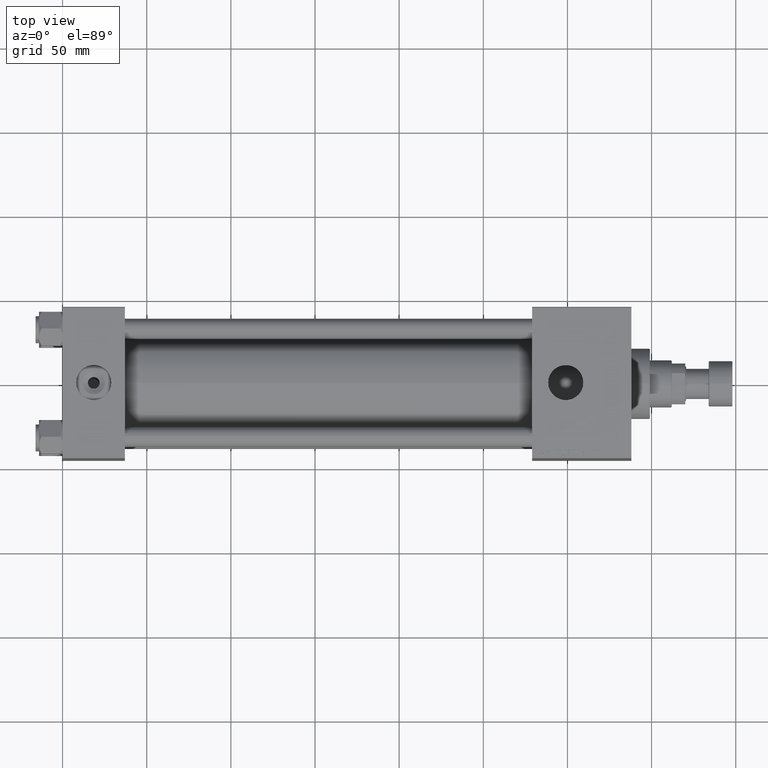
[diagram: clean part render]
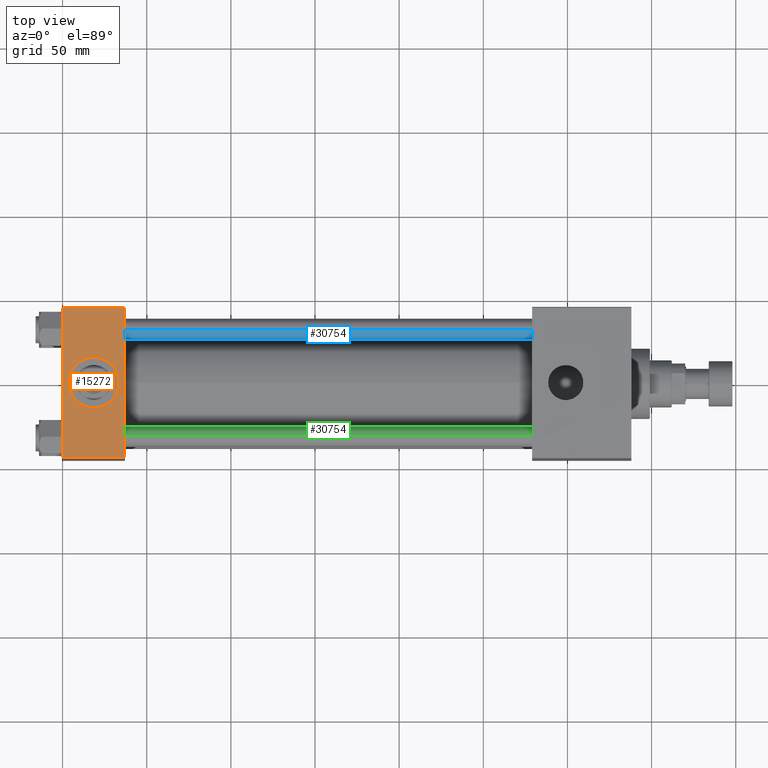
[diagram: same view with three faces highlighted in distinct colors, each labeled with its STEP entity id]
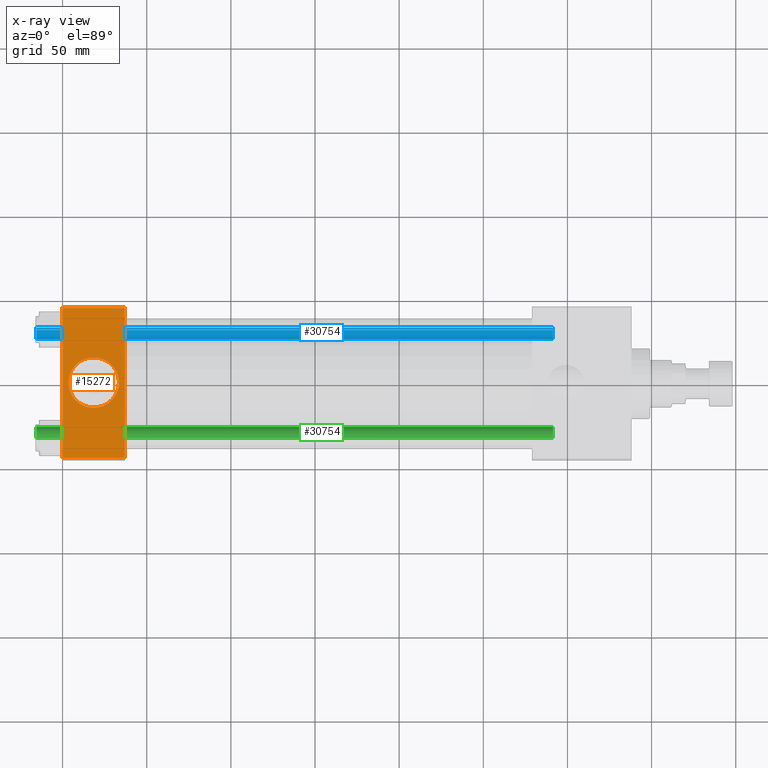
[diagram: x-ray of the same camera — body ghosted, the three highlighted faces saturated]
A machine part, top view with three faces highlighted in distinct colors.
The next image is the same camera in x-ray (body ghosted, the three faces saturated) — at least one of them is partly hidden behind the body in this view.
Their STEP definitions:

[orange] entity #15272 — the highlighted planar face has unit normal (0, 0, -1).
#335 = VERTEX_POINT ( 'NONE', #27713 ) ;
#1522 = ORIENTED_EDGE ( 'NONE', *, *, #46849, .T. ) ;
#3075 = DIRECTION ( 'NONE',  ( 1.000000000000000000, 0.000000000000000000, 0.000000000000000000 ) ) ;
#3331 = LINE ( 'NONE', #19590, #52408 ) ;
#4678 = AXIS2_PLACEMENT_3D ( 'NONE', #28032, #32039, #27230 ) ;
#4688 = EDGE_CURVE ( 'NONE', #10588, #335, #39326, .T. ) ;
#6317 = ORIENTED_EDGE ( 'NONE', *, *, #4688, .F. ) ;
#6540 = DIRECTION ( 'NONE',  ( 0.000000000000000000, -1.000000000000000000, -1.541976423090495387E-16 ) ) ;
#8038 = EDGE_CURVE ( 'NONE', #34745, #29372, #36938, .T. ) ;
#8711 = ORIENTED_EDGE ( 'NONE', *, *, #47017, .F. ) ;
#10272 = VERTEX_POINT ( 'NONE', #45093 ) ;
#10588 = VERTEX_POINT ( 'NONE', #26430 ) ;
#11964 = EDGE_CURVE ( 'NONE', #10588, #10272, #39125, .T. ) ;
#14959 = FACE_OUTER_BOUND ( 'NONE', #18659, .T. ) ;
#15272 = ADVANCED_FACE ( 'NONE', ( #22962, #14959 ), #30978, .F. ) ;
#15306 = VECTOR ( 'NONE', #6540, 1000.000000000000000 ) ;
#17229 = ORIENTED_EDGE ( 'NONE', *, *, #8038, .F. ) ;
#17690 = DIRECTION ( 'NONE',  ( 0.000000000000000000, 0.000000000000000000, 1.000000000000000000 ) ) ;
#18659 = EDGE_LOOP ( 'NONE', ( #1522, #20895, #6317, #36503 ) ) ;
#19590 = CARTESIAN_POINT ( 'NONE',  ( 37.00000000000000000, -44.49999999999998579, 45.00000000000000000 ) ) ;
#19668 = CARTESIAN_POINT ( 'NONE',  ( 0.000000000000000000, -44.49999999999995737, 45.00000000000000000 ) ) ;
#20895 = ORIENTED_EDGE ( 'NONE', *, *, #33220, .T. ) ;
#20902 = CARTESIAN_POINT ( 'NONE',  ( 18.50000000000000000, -8.673617379884038628E-15, 45.00000000000000711 ) ) ;
#21419 = VECTOR ( 'NONE', #43869, 1000.000000000000000 ) ;
#22962 = FACE_BOUND ( 'NONE', #47908, .T. ) ;
#23958 = VERTEX_POINT ( 'NONE', #19668 ) ;
#24122 = AXIS2_PLACEMENT_3D ( 'NONE', #38964, #51762, #31225 ) ;
#26430 = CARTESIAN_POINT ( 'NONE',  ( 37.00000000000000000, 44.49999999999998579, 45.00000000000001421 ) ) ;
#26805 = CARTESIAN_POINT ( 'NONE',  ( 0.000000000000000000, 44.99999999999998579, 45.00000000000001421 ) ) ;
#27230 = DIRECTION ( 'NONE',  ( 0.000000000000000000, 1.000000000000000000, 1.541976423090495633E-16 ) ) ;
#27374 = CARTESIAN_POINT ( 'NONE',  ( 0.000000000000000000, 44.49999999999998579, 45.00000000000001421 ) ) ;
#27713 = CARTESIAN_POINT ( 'NONE',  ( 37.00000000000000000, -44.49999999999995737, 45.00000000000000000 ) ) ;
#27787 = CARTESIAN_POINT ( 'NONE',  ( 33.50000000000000000, -8.673617379884038628E-15, 45.00000000000000711 ) ) ;
#28032 = CARTESIAN_POINT ( 'NONE',  ( 37.00000000000000000, 44.99999999999998579, 45.00000000000001421 ) ) ;
#29372 = VERTEX_POINT ( 'NONE', #27787 ) ;
#30978 = PLANE ( 'NONE',  #4678 ) ;
#31225 = DIRECTION ( 'NONE',  ( 1.000000000000000000, 0.000000000000000000, 0.000000000000000000 ) ) ;
#32039 = DIRECTION ( 'NONE',  ( 0.000000000000000000, 1.541976423090495633E-16, -1.000000000000000000 ) ) ;
#33220 = EDGE_CURVE ( 'NONE', #23958, #335, #3331, .T. ) ;
#34745 = VERTEX_POINT ( 'NONE', #41011 ) ;
#35088 = LINE ( 'NONE', #26805, #15306 ) ;
#35762 = CIRCLE ( 'NONE', #51945, 15.00000000000000355 ) ;
#35862 = CARTESIAN_POINT ( 'NONE',  ( 37.00000000000000000, 44.99999999999998579, 45.00000000000001421 ) ) ;
#36503 = ORIENTED_EDGE ( 'NONE', *, *, #11964, .T. ) ;
#36938 = CIRCLE ( 'NONE', #24122, 15.00000000000000355 ) ;
#38964 = CARTESIAN_POINT ( 'NONE',  ( 18.50000000000000000, -8.673617379884038628E-15, 45.00000000000000711 ) ) ;
#39125 = LINE ( 'NONE', #27374, #43747 ) ;
#39326 = LINE ( 'NONE', #35862, #21419 ) ;
#39914 = DIRECTION ( 'NONE',  ( -1.000000000000000000, 0.000000000000000000, 0.000000000000000000 ) ) ;
#41011 = CARTESIAN_POINT ( 'NONE',  ( 3.499999999999997780, -6.836647181163008250E-15, 45.00000000000000711 ) ) ;
#41969 = DIRECTION ( 'NONE',  ( 1.000000000000000000, 0.000000000000000000, 0.000000000000000000 ) ) ;
#43747 = VECTOR ( 'NONE', #39914, 1000.000000000000000 ) ;
#43869 = DIRECTION ( 'NONE',  ( 0.000000000000000000, -1.000000000000000000, -1.541976423090495387E-16 ) ) ;
#45093 = CARTESIAN_POINT ( 'NONE',  ( 0.000000000000000000, 44.49999999999998579, 45.00000000000001421 ) ) ;
#46849 = EDGE_CURVE ( 'NONE', #10272, #23958, #35088, .T. ) ;
#47017 = EDGE_CURVE ( 'NONE', #29372, #34745, #35762, .T. ) ;
#47908 = EDGE_LOOP ( 'NONE', ( #8711, #17229 ) ) ;
#51762 = DIRECTION ( 'NONE',  ( 0.000000000000000000, 0.000000000000000000, 1.000000000000000000 ) ) ;
#51945 = AXIS2_PLACEMENT_3D ( 'NONE', #20902, #17690, #41969 ) ;
#52408 = VECTOR ( 'NONE', #3075, 1000.000000000000000 ) ;

[blue] entity #30754 — the highlighted cylindrical surface (edge-blend (fillet) strip) has radius 6 mm, axis along (-1, 0, 0).
#1178 = DIRECTION ( 'NONE',  ( 1.000000000000000000, 0.000000000000000000, 0.000000000000000000 ) ) ;
#2660 = VERTEX_POINT ( 'NONE', #15299 ) ;
#2931 = CIRCLE ( 'NONE', #37842, 6.000000000000000888 ) ;
#2981 = CARTESIAN_POINT ( 'NONE',  ( 0.000000000000000000, 0.000000000000000000, 308.0000000000000000 ) ) ;
#3274 = LINE ( 'NONE', #52619, #30786 ) ;
#3555 = AXIS2_PLACEMENT_3D ( 'NONE', #50264, #13978, #1178 ) ;
#3806 = LINE ( 'NONE', #36622, #47957 ) ;
#5732 = EDGE_LOOP ( 'NONE', ( #25880, #5893, #50218, #8584 ) ) ;
#5893 = ORIENTED_EDGE ( 'NONE', *, *, #24428, .T. ) ;
#8584 = ORIENTED_EDGE ( 'NONE', *, *, #52669, .T. ) ;
#11274 = DIRECTION ( 'NONE',  ( -0.000000000000000000, -0.000000000000000000, -1.000000000000000000 ) ) ;
#13978 = DIRECTION ( 'NONE',  ( 0.000000000000000000, 0.000000000000000000, -1.000000000000000000 ) ) ;
#14860 = VERTEX_POINT ( 'NONE', #41266 ) ;
#15299 = CARTESIAN_POINT ( 'NONE',  ( 6.000000000000000888, 7.347880794884120722E-16, 307.4999999999999432 ) ) ;
#15502 = DIRECTION ( 'NONE',  ( -0.000000000000000000, -0.000000000000000000, -1.000000000000000000 ) ) ;
#15602 = DIRECTION ( 'NONE',  ( -0.000000000000000000, -0.000000000000000000, 1.000000000000000000 ) ) ;
#20078 = DIRECTION ( 'NONE',  ( -0.000000000000000000, -0.000000000000000000, -1.000000000000000000 ) ) ;
#21405 = CIRCLE ( 'NONE', #3555, 6.000000000000000888 ) ;
#23278 = EDGE_CURVE ( 'NONE', #36051, #14860, #3274, .T. ) ;
#23610 = CARTESIAN_POINT ( 'NONE',  ( 0.000000000000000000, 0.000000000000000000, 0.5000000000000559552 ) ) ;
#24428 = EDGE_CURVE ( 'NONE', #2660, #36051, #21405, .T. ) ;
#25880 = ORIENTED_EDGE ( 'NONE', *, *, #27193, .F. ) ;
#27193 = EDGE_CURVE ( 'NONE', #2660, #46302, #3806, .T. ) ;
#30754 = ADVANCED_FACE ( 'NONE', ( #47536 ), #47795, .T. ) ;
#30786 = VECTOR ( 'NONE', #11274, 1000.000000000000000 ) ;
#31525 = DIRECTION ( 'NONE',  ( -1.000000000000000000, 0.000000000000000000, 0.000000000000000000 ) ) ;
#32067 = CARTESIAN_POINT ( 'NONE',  ( 6.000000000000000888, 7.347880794884120722E-16, 0.5000000000000559552 ) ) ;
#35799 = CARTESIAN_POINT ( 'NONE',  ( -6.000000000000000888, 0.000000000000000000, 307.4999999999999432 ) ) ;
#36051 = VERTEX_POINT ( 'NONE', #35799 ) ;
#36622 = CARTESIAN_POINT ( 'NONE',  ( 6.000000000000000888, 7.347880794884120722E-16, 308.0000000000000000 ) ) ;
#37842 = AXIS2_PLACEMENT_3D ( 'NONE', #23610, #15602, #51900 ) ;
#41266 = CARTESIAN_POINT ( 'NONE',  ( -6.000000000000000888, 0.000000000000000000, 0.5000000000000559552 ) ) ;
#46302 = VERTEX_POINT ( 'NONE', #32067 ) ;
#46368 = AXIS2_PLACEMENT_3D ( 'NONE', #2981, #15502, #31525 ) ;
#47536 = FACE_OUTER_BOUND ( 'NONE', #5732, .T. ) ;
#47795 = CYLINDRICAL_SURFACE ( 'NONE', #46368, 6.000000000000000888 ) ;
#47957 = VECTOR ( 'NONE', #20078, 1000.000000000000000 ) ;
#50218 = ORIENTED_EDGE ( 'NONE', *, *, #23278, .T. ) ;
#50264 = CARTESIAN_POINT ( 'NONE',  ( 0.000000000000000000, 0.000000000000000000, 307.4999999999999432 ) ) ;
#51900 = DIRECTION ( 'NONE',  ( 1.000000000000000000, 0.000000000000000000, 0.000000000000000000 ) ) ;
#52619 = CARTESIAN_POINT ( 'NONE',  ( -6.000000000000000888, 0.000000000000000000, 308.0000000000000000 ) ) ;
#52669 = EDGE_CURVE ( 'NONE', #14860, #46302, #2931, .T. ) ;

[green] entity #30754 — the highlighted cylindrical surface (edge-blend (fillet) strip) has radius 6 mm, axis along (1, 0, -0).
#1178 = DIRECTION ( 'NONE',  ( 1.000000000000000000, 0.000000000000000000, 0.000000000000000000 ) ) ;
#2660 = VERTEX_POINT ( 'NONE', #15299 ) ;
#2931 = CIRCLE ( 'NONE', #37842, 6.000000000000000888 ) ;
#2981 = CARTESIAN_POINT ( 'NONE',  ( 0.000000000000000000, 0.000000000000000000, 308.0000000000000000 ) ) ;
#3274 = LINE ( 'NONE', #52619, #30786 ) ;
#3555 = AXIS2_PLACEMENT_3D ( 'NONE', #50264, #13978, #1178 ) ;
#3806 = LINE ( 'NONE', #36622, #47957 ) ;
#5732 = EDGE_LOOP ( 'NONE', ( #25880, #5893, #50218, #8584 ) ) ;
#5893 = ORIENTED_EDGE ( 'NONE', *, *, #24428, .T. ) ;
#8584 = ORIENTED_EDGE ( 'NONE', *, *, #52669, .T. ) ;
#11274 = DIRECTION ( 'NONE',  ( -0.000000000000000000, -0.000000000000000000, -1.000000000000000000 ) ) ;
#13978 = DIRECTION ( 'NONE',  ( 0.000000000000000000, 0.000000000000000000, -1.000000000000000000 ) ) ;
#14860 = VERTEX_POINT ( 'NONE', #41266 ) ;
#15299 = CARTESIAN_POINT ( 'NONE',  ( 6.000000000000000888, 7.347880794884120722E-16, 307.4999999999999432 ) ) ;
#15502 = DIRECTION ( 'NONE',  ( -0.000000000000000000, -0.000000000000000000, -1.000000000000000000 ) ) ;
#15602 = DIRECTION ( 'NONE',  ( -0.000000000000000000, -0.000000000000000000, 1.000000000000000000 ) ) ;
#20078 = DIRECTION ( 'NONE',  ( -0.000000000000000000, -0.000000000000000000, -1.000000000000000000 ) ) ;
#21405 = CIRCLE ( 'NONE', #3555, 6.000000000000000888 ) ;
#23278 = EDGE_CURVE ( 'NONE', #36051, #14860, #3274, .T. ) ;
#23610 = CARTESIAN_POINT ( 'NONE',  ( 0.000000000000000000, 0.000000000000000000, 0.5000000000000559552 ) ) ;
#24428 = EDGE_CURVE ( 'NONE', #2660, #36051, #21405, .T. ) ;
#25880 = ORIENTED_EDGE ( 'NONE', *, *, #27193, .F. ) ;
#27193 = EDGE_CURVE ( 'NONE', #2660, #46302, #3806, .T. ) ;
#30754 = ADVANCED_FACE ( 'NONE', ( #47536 ), #47795, .T. ) ;
#30786 = VECTOR ( 'NONE', #11274, 1000.000000000000000 ) ;
#31525 = DIRECTION ( 'NONE',  ( -1.000000000000000000, 0.000000000000000000, 0.000000000000000000 ) ) ;
#32067 = CARTESIAN_POINT ( 'NONE',  ( 6.000000000000000888, 7.347880794884120722E-16, 0.5000000000000559552 ) ) ;
#35799 = CARTESIAN_POINT ( 'NONE',  ( -6.000000000000000888, 0.000000000000000000, 307.4999999999999432 ) ) ;
#36051 = VERTEX_POINT ( 'NONE', #35799 ) ;
#36622 = CARTESIAN_POINT ( 'NONE',  ( 6.000000000000000888, 7.347880794884120722E-16, 308.0000000000000000 ) ) ;
#37842 = AXIS2_PLACEMENT_3D ( 'NONE', #23610, #15602, #51900 ) ;
#41266 = CARTESIAN_POINT ( 'NONE',  ( -6.000000000000000888, 0.000000000000000000, 0.5000000000000559552 ) ) ;
#46302 = VERTEX_POINT ( 'NONE', #32067 ) ;
#46368 = AXIS2_PLACEMENT_3D ( 'NONE', #2981, #15502, #31525 ) ;
#47536 = FACE_OUTER_BOUND ( 'NONE', #5732, .T. ) ;
#47795 = CYLINDRICAL_SURFACE ( 'NONE', #46368, 6.000000000000000888 ) ;
#47957 = VECTOR ( 'NONE', #20078, 1000.000000000000000 ) ;
#50218 = ORIENTED_EDGE ( 'NONE', *, *, #23278, .T. ) ;
#50264 = CARTESIAN_POINT ( 'NONE',  ( 0.000000000000000000, 0.000000000000000000, 307.4999999999999432 ) ) ;
#51900 = DIRECTION ( 'NONE',  ( 1.000000000000000000, 0.000000000000000000, 0.000000000000000000 ) ) ;
#52619 = CARTESIAN_POINT ( 'NONE',  ( -6.000000000000000888, 0.000000000000000000, 308.0000000000000000 ) ) ;
#52669 = EDGE_CURVE ( 'NONE', #14860, #46302, #2931, .T. ) ;